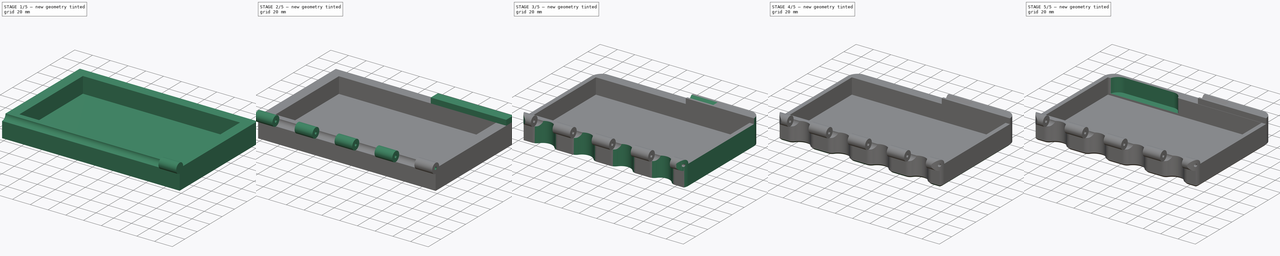
[diagram: build sequence overview — one tinted view per stage of 5, left to right]
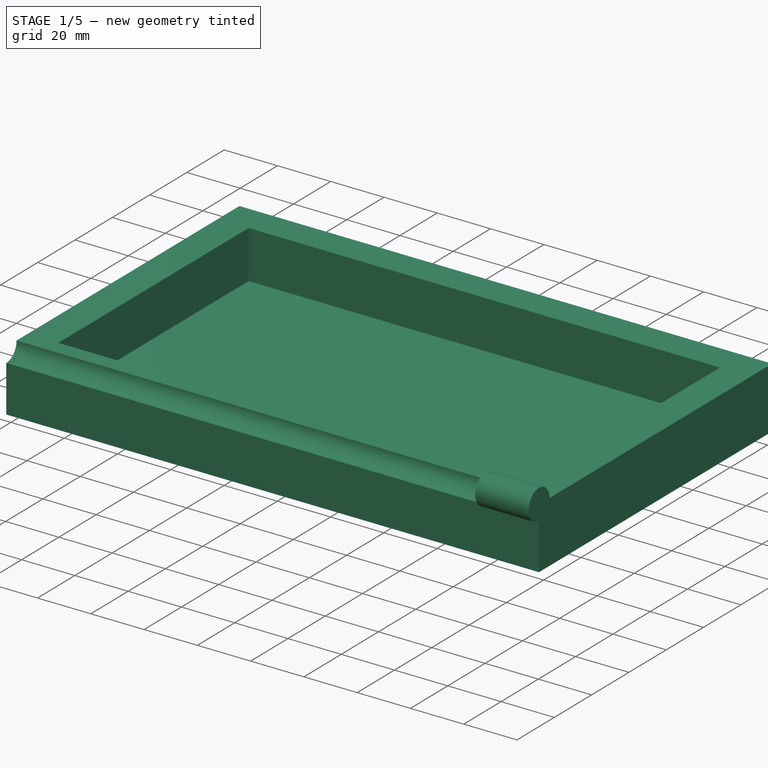
[diagram: stage 1 of 5 — iso view after this stage's code; geometry added in this stage tinted green]
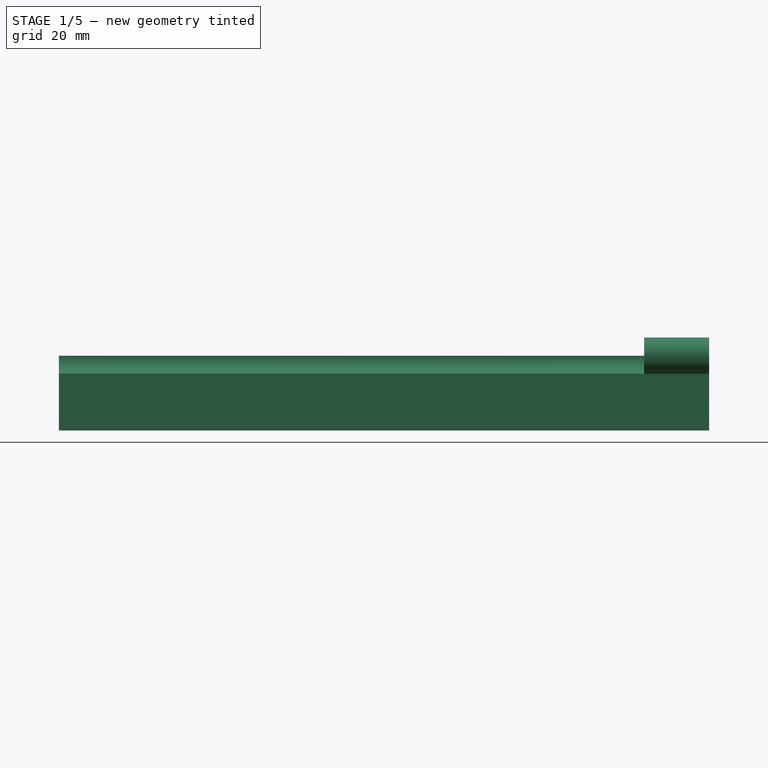
[diagram: stage 1 of 5 — front view after this stage's code; geometry added in this stage tinted green]
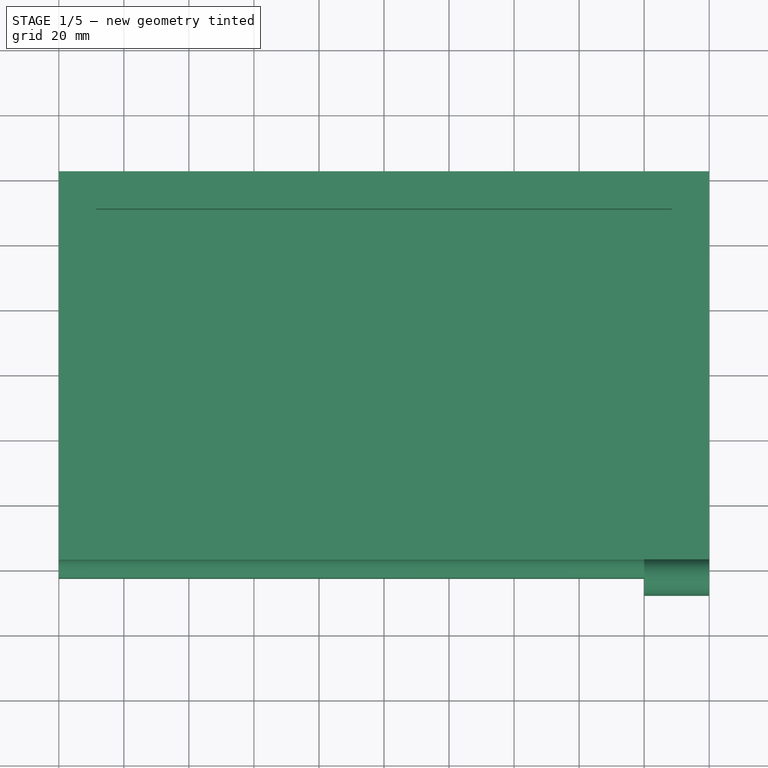
[diagram: stage 1 of 5 — top view after this stage's code; geometry added in this stage tinted green]
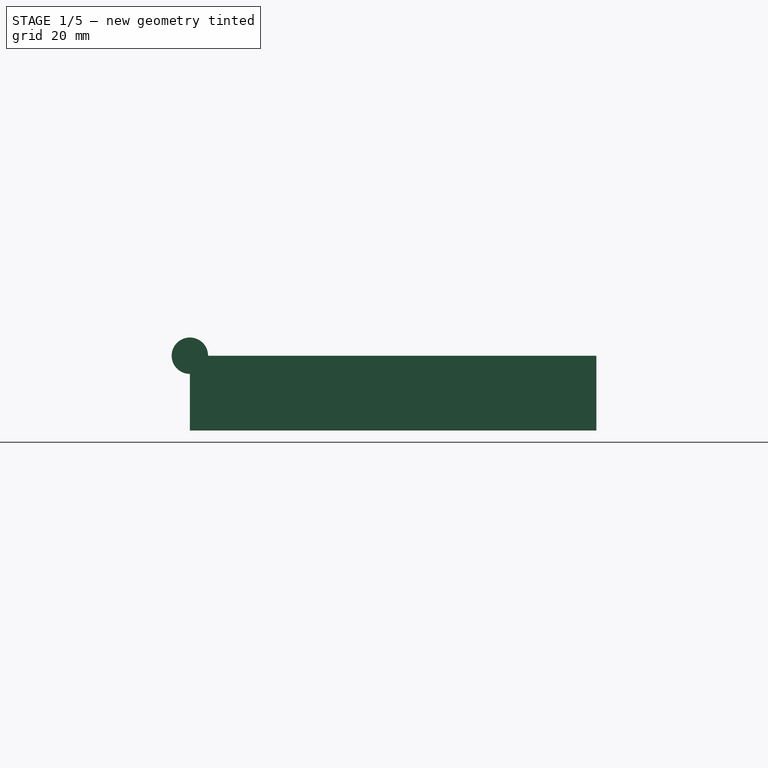
[diagram: stage 1 of 5 — right view after this stage's code; geometry added in this stage tinted green]
FCSTD DOCUMENT  (FreeCAD 0.19R)
Label: SwitchCaseSmallLatch1
License: All rights reserved
LicenseURL: http://en.wikipedia.org/wiki/All_rights_reserved
objects: Sketcher::SketchObject×12, PartDesign::Pocket×9, PartDesign::Pad×3, PartDesign::Chamfer×3, PartDesign::Fillet×2, PartDesign::LinearPattern×1, PartDesign::Body×1
note: 48 computed .brp shape members not serialized (recipe doc carries the construction recipe); baked Part::Feature solids carry a one-line shape summary decoded from their .brp

FEATURE [Sketcher::SketchObject] Sketch
  FullyConstrained = true
  MapMode = 5
  Support = -> [XY_Plane]
  sketch-geometry (4):
    g0: LineSegment StartX=-100 StartY=62.5 StartZ=0 EndX=100 EndY=62.5 EndZ=0
    g1: LineSegment StartX=100 StartY=62.5 StartZ=0 EndX=100 EndY=-62.5 EndZ=0
    g2: LineSegment StartX=100 StartY=-62.5 StartZ=0 EndX=-100 EndY=-62.5 EndZ=0
    g3: LineSegment StartX=-100 StartY=-62.5 StartZ=0 EndX=-100 EndY=62.5 EndZ=0
  constraints (11):
    c: Coincident(g0,g1)
    c: Coincident(g1,g2)
    c: Coincident(g2,g3)
    c: Coincident(g3,g0)
    c: Horizontal(g0)
    c: Horizontal(g2)
    c: Vertical(g1)
    c: Vertical(g3)
    c: Symmetric(g0,g2,g-1)
    c: Distance(g0) = 200
    c: Distance(g1) = 125
FEATURE [PartDesign::Pad] Pad
  Direction = (1,1,1)
  Length = 23
  Length2 = 100
  Profile = -> Sketch
  Type = 0
FEATURE [Sketcher::SketchObject] Sketch001
  FullyConstrained = true
  MapMode = 5
  Placement = pos=(0,0,23) rot=(0,0,1;0rad)
  Support = -> [Pad]
  sketch-geometry (4):
    g0: LineSegment StartX=-88.5 StartY=51 StartZ=0 EndX=88.5 EndY=51 EndZ=0
    g1: LineSegment StartX=88.5 StartY=51 StartZ=0 EndX=88.5 EndY=-51 EndZ=0
    g2: LineSegment StartX=88.5 StartY=-51 StartZ=0 EndX=-88.5 EndY=-51 EndZ=0
    g3: LineSegment StartX=-88.5 StartY=-51 StartZ=0 EndX=-88.5 EndY=51 EndZ=0
  constraints (11):
    c: Coincident(g0,g1)
    c: Coincident(g1,g2)
    c: Coincident(g2,g3)
    c: Coincident(g3,g0)
    c: Horizontal(g0)
    c: Horizontal(g2)
    c: Vertical(g1)
    c: Vertical(g3)
    c: Symmetric(g0,g2,g-1)
    c: Distance(g0) = 177
    c: Distance(g1) = 102
FEATURE [PartDesign::Pocket] Pocket
  BaseFeature = -> Pad
  Length = 18
  Length2 = 100
  Profile = -> Sketch001
  Type = 0
FEATURE [Sketcher::SketchObject] Sketch002
  ExternalGeometry = -> [Pocket]
  FullyConstrained = true
  MapMode = 5
  Placement = pos=(100,0,0) rot=(0.57735,0.57735,0.57735;2.0944rad)
  Support = -> [Pocket]
  sketch-geometry (1):
    g0: Circle CenterX=-62.5 CenterY=23 CenterZ=0 NormalX=0 NormalY=0 NormalZ=1 AngleXU=0 Radius=5.5
  constraints (2):
    c: Radius(g0) = 5.5
    c: Coincident(g0,g-3)
FEATURE [PartDesign::Pocket] Pocket001
  BaseFeature = -> Pocket
  Length = 5
  Length2 = 100
  Profile = -> Sketch002
  Type = 1
FEATURE [Sketcher::SketchObject] Sketch004
  ExternalGeometry = -> [Pocket001]
  FullyConstrained = true
  MapMode = 5
  Placement = pos=(100,0,0) rot=(0.57735,0.57735,0.57735;2.0944rad)
  Support = -> [Pocket001]
  sketch-geometry (1):
    g0: Circle CenterX=-62.5 CenterY=23 CenterZ=0 NormalX=0 NormalY=0 NormalZ=1 AngleXU=0 Radius=5.6
  constraints (3):
    c: Radius(g0) = 5.6
    c: PointOnObject(g0,g-3)
    c: PointOnObject(g0,g-4)
FEATURE [PartDesign::Pad] Pad001  label="PadHinge"
  BaseFeature = -> Pocket001
  Direction = (1,1,1)
  Length = 20
  Length2 = 100
  Profile = -> Sketch004
  Reversed = true
  Type = 0
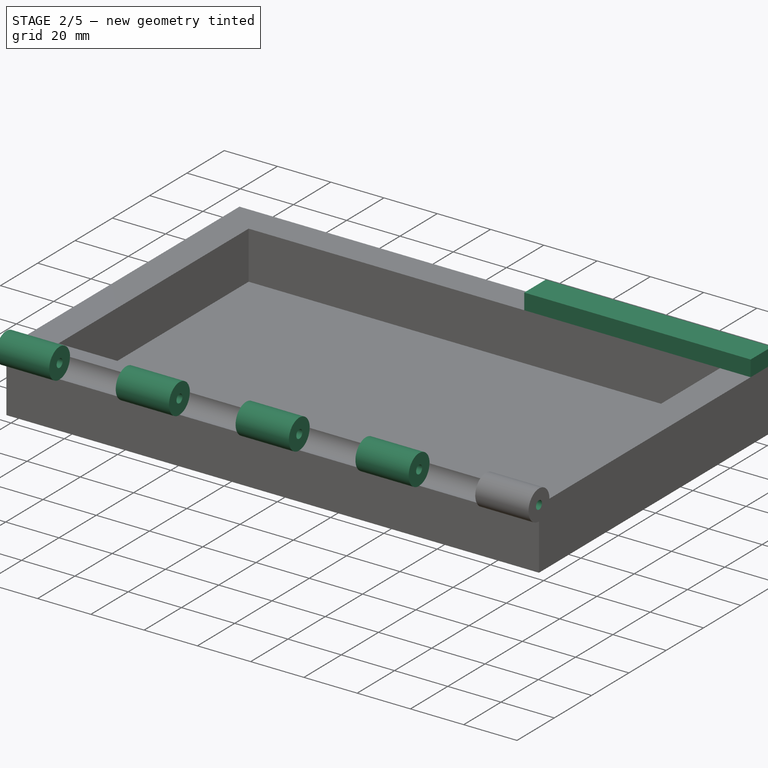
[diagram: stage 2 of 5 — iso view after this stage's code; geometry added in this stage tinted green]
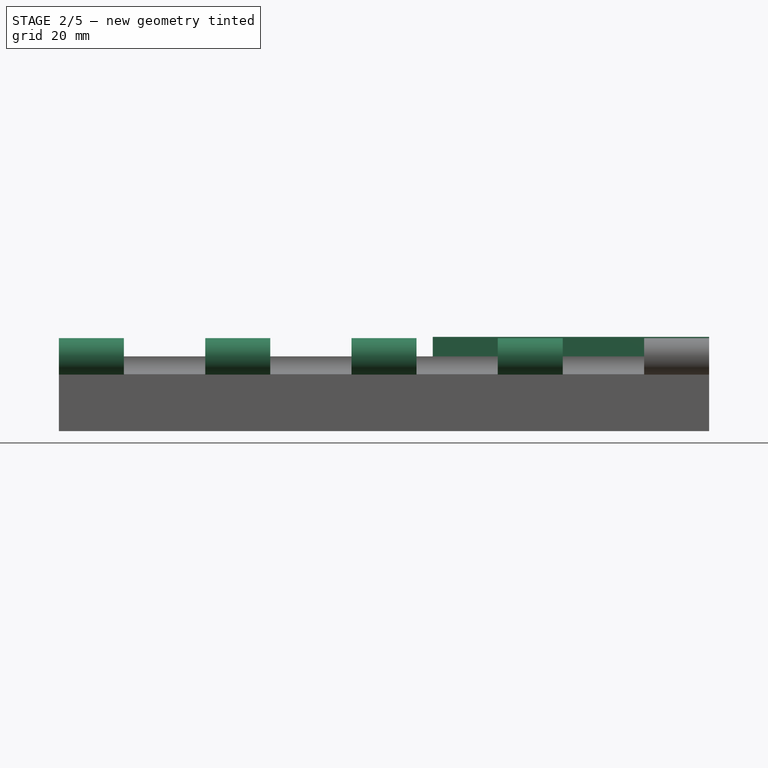
[diagram: stage 2 of 5 — front view after this stage's code; geometry added in this stage tinted green]
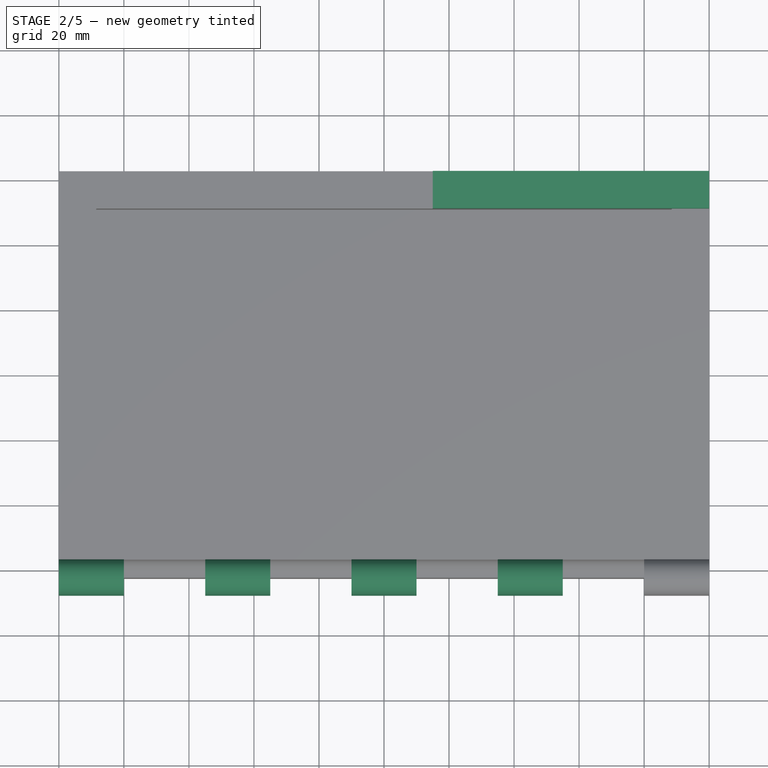
[diagram: stage 2 of 5 — top view after this stage's code; geometry added in this stage tinted green]
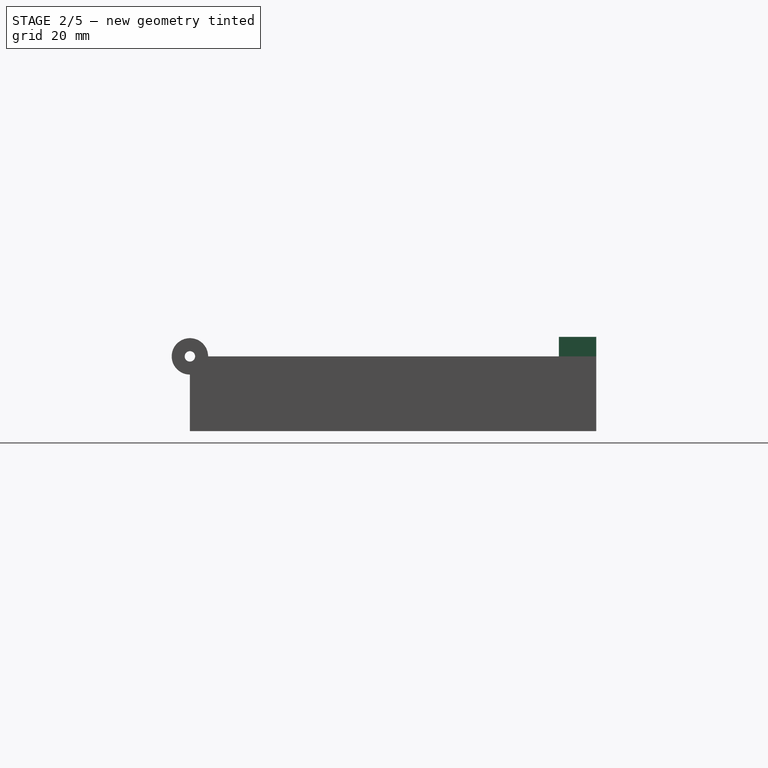
[diagram: stage 2 of 5 — right view after this stage's code; geometry added in this stage tinted green]
FEATURE [PartDesign::LinearPattern] LinearPattern
  BaseFeature = -> Pad001
  Direction = -> X_Axis
  Length = 180
  Occurrences = 5
  Originals = -> [Pad001]
  Reversed = true
FEATURE [Sketcher::SketchObject] Sketch005
  ExternalGeometry = -> [LinearPattern]
  FullyConstrained = true
  MapMode = 5
  Placement = pos=(100,0,0) rot=(0.57735,0.57735,0.57735;2.0944rad)
  Support = -> [LinearPattern]
  sketch-geometry (1):
    g0: Circle CenterX=-62.5 CenterY=23 CenterZ=0 NormalX=0 NormalY=0 NormalZ=1 AngleXU=0 Radius=1.6
  constraints (2):
    c: Radius(g0) = 1.6
    c: Coincident(g0,g-3)
FEATURE [PartDesign::Pocket] Pocket002
  BaseFeature = -> LinearPattern
  Length = 5
  Length2 = 100
  Profile = -> Sketch005
  Type = 1
FEATURE [Sketcher::SketchObject] Sketch007
  FullyConstrained = false
  MapMode = 5
  Placement = pos=(0,0,23) rot=(0,0,1;0rad)
  sketch-geometry (4):
    g0: LineSegment StartX=15 StartY=62.5 StartZ=0 EndX=100 EndY=62.5 EndZ=0
    g1: LineSegment StartX=100 StartY=62.5 StartZ=0 EndX=100 EndY=51 EndZ=0
    g2: LineSegment StartX=100 StartY=51 StartZ=0 EndX=15 EndY=51 EndZ=0
    g3: LineSegment StartX=15 StartY=51 StartZ=0 EndX=15 EndY=62.5 EndZ=0
  constraints (10):
    c: Coincident(g0,g1)
    c: Coincident(g1,g2)
    c: Coincident(g2,g3)
    c: Coincident(g3,g0)
    c: Horizontal(g0)
    c: Horizontal(g2)
    c: Vertical(g1)
    c: Vertical(g3)
    c: DistanceX(g0) = 15
    c: DistanceY(g0) = 62.5
FEATURE [PartDesign::Pad] Pad002  label="PadTower"
  BaseFeature = -> Pocket002
  Direction = (1,1,1)
  Length = 6
  Length2 = 100
  Profile = -> Sketch007
  Type = 0
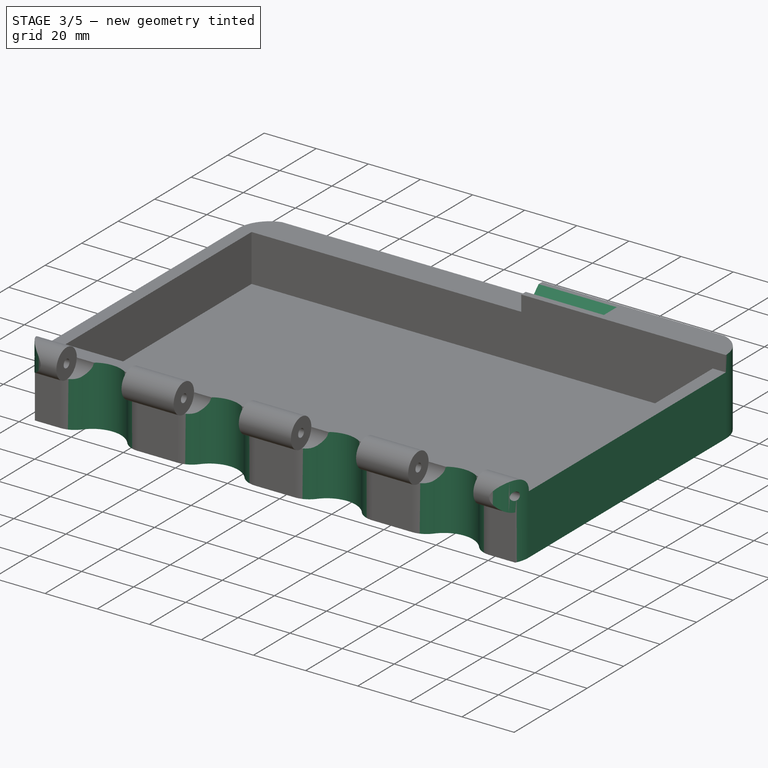
[diagram: stage 3 of 5 — iso view after this stage's code; geometry added in this stage tinted green]
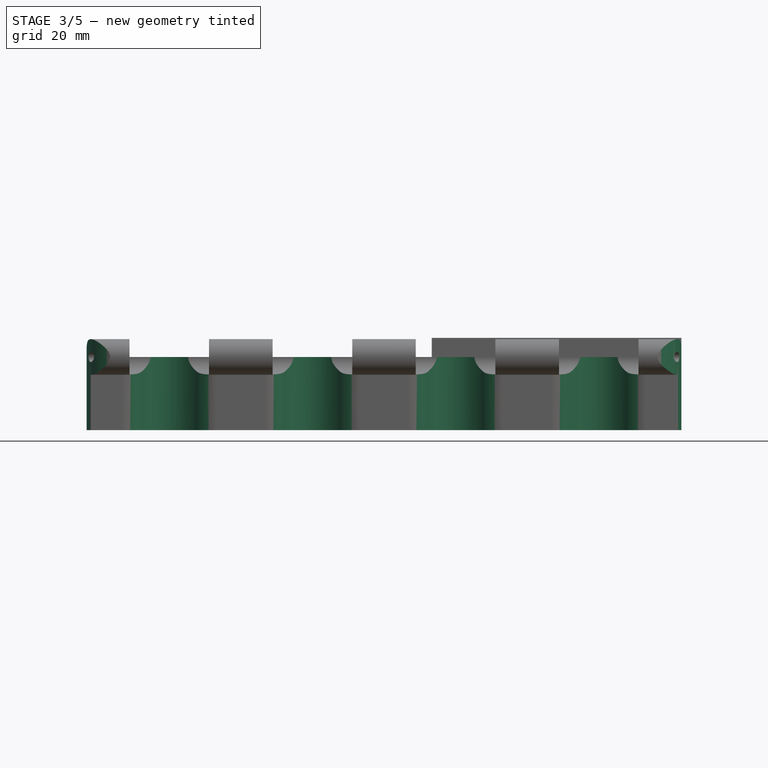
[diagram: stage 3 of 5 — front view after this stage's code; geometry added in this stage tinted green]
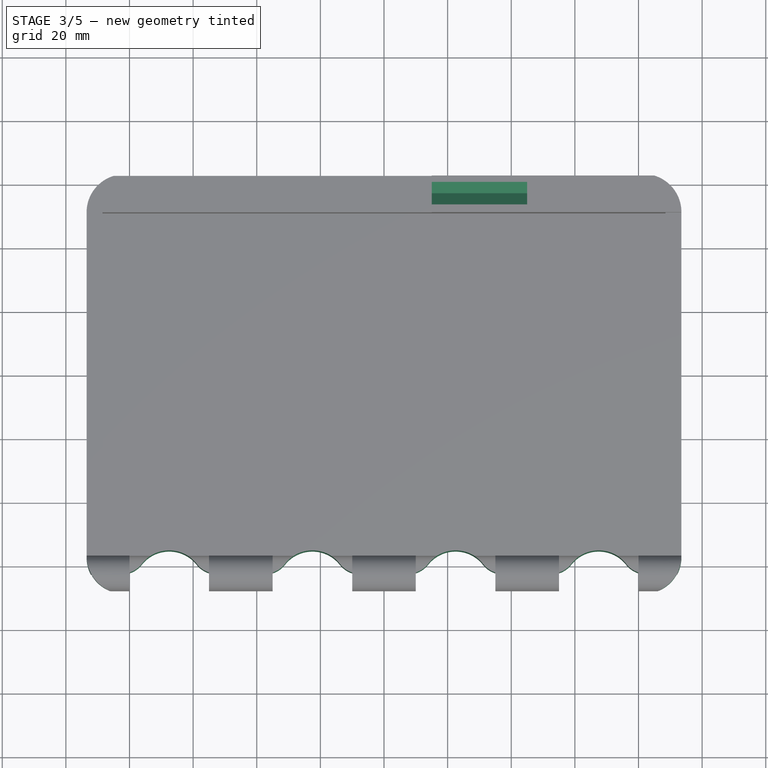
[diagram: stage 3 of 5 — top view after this stage's code; geometry added in this stage tinted green]
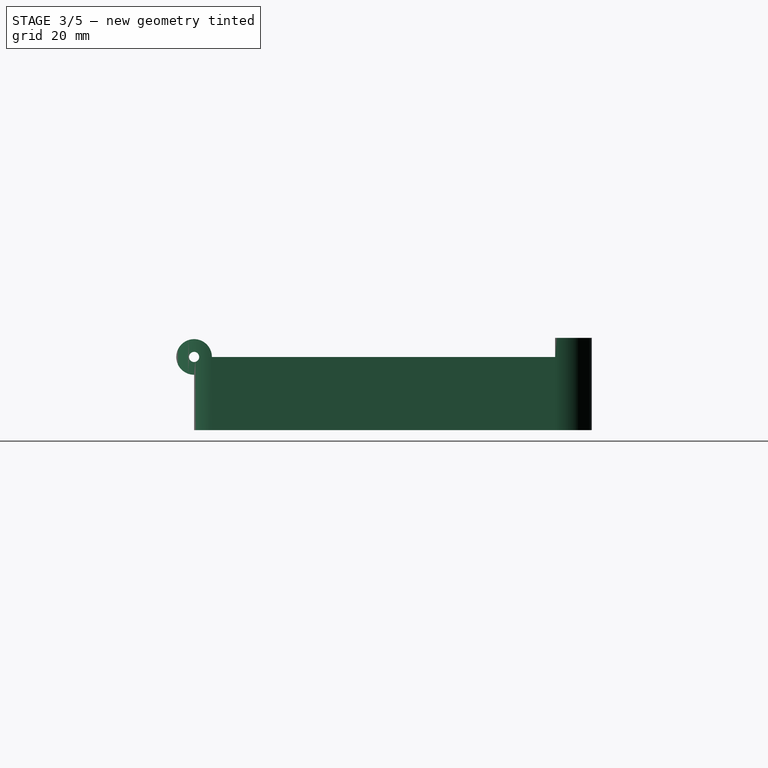
[diagram: stage 3 of 5 — right view after this stage's code; geometry added in this stage tinted green]
FEATURE [Sketcher::SketchObject] Sketch008
  ExternalGeometry = -> [Pad002]
  FullyConstrained = true
  MapMode = 5
  Placement = pos=(-100,0,0) rot=(0.57735,-0.57735,-0.57735;2.0944rad)
  Support = -> [Pad002]
  sketch-geometry (8):
    g0: LineSegment StartX=-56.9645 StartY=3.53553 StartZ=0 EndX=-60.5 EndY=0 EndZ=0
    g1: LineSegment StartX=-60.5 StartY=0 StartZ=0 EndX=-56.9645 EndY=-3.53553 EndZ=0
    g2: LineSegment StartX=-56.9645 StartY=-3.53553 StartZ=0 EndX=-53.4289 EndY=0 EndZ=0
    g3: LineSegment StartX=-53.4289 StartY=0 StartZ=0 EndX=-56.9645 EndY=3.53553 EndZ=0
    g4: LineSegment StartX=-56.9645 StartY=32.5355 StartZ=0 EndX=-60.5 EndY=29 EndZ=0
    g5: LineSegment StartX=-60.5 StartY=29 StartZ=0 EndX=-56.9645 EndY=25.4645 EndZ=0
    g6: LineSegment StartX=-56.9645 StartY=25.4645 StartZ=0 EndX=-53.4289 EndY=29 EndZ=0
    g7: LineSegment StartX=-53.4289 StartY=29 StartZ=0 EndX=-56.9645 EndY=32.5355 EndZ=0
  constraints (24):
    c: Coincident(g0,g1)
    c: Coincident(g1,g2)
    c: Coincident(g2,g3)
    c: Coincident(g3,g0)
    c: Perpendicular(g0,g3)
    c: Perpendicular(g1,g0)
    c: Equal(g2,g1)
    c: Equal(g0,g3)
    c: Distance(g3) = 5
    c: PointOnObject(g2,g-1)
    c: PointOnObject(g0,g-1)
    c: Distance(g0,g-3) = 2
    c: Coincident(g4,g5)
    c: Coincident(g5,g6)
    c: Coincident(g6,g7)
    c: Coincident(g7,g4)
    c: Perpendicular(g4,g7)
    c: Perpendicular(g4,g5)
    c: Equal(g5,g6)
    c: Equal(g6,g7)
    c: Distance(g7) = 5
    c: PointOnObject(g4,g-4)
    c: PointOnObject(g6,g-4)
    c: Distance(g4,g-4) = 2
FEATURE [PartDesign::Pocket] Pocket003
  BaseFeature = -> Pad002
  Length = 145
  Length2 = 100
  Profile = -> Sketch008
  Type = 0
FEATURE [Sketcher::SketchObject] Sketch009
  FullyConstrained = true
  MapMode = 5
  Placement = pos=(0,0,0) rot=(1,0,0;3.14159rad)
  Support = -> [Pocket003]
  sketch-geometry (9):
    g0: ArcOfCircle CenterX=81.5 CenterY=57 CenterZ=0 NormalX=0 NormalY=0 NormalZ=1 AngleXU=0 Radius=12 StartAngle=0 EndAngle=1.5708
    g1: ArcOfCircle CenterX=81.5 CenterY=-51 CenterZ=0 NormalX=0 NormalY=0 NormalZ=1 AngleXU=0 Radius=12 StartAngle=4.71239 EndAngle=6.28319
    g2: ArcOfCircle CenterX=-81.5 CenterY=-51 CenterZ=0 NormalX=0 NormalY=0 NormalZ=1 AngleXU=0 Radius=12 StartAngle=3.14159 EndAngle=4.71239
    g3: ArcOfCircle CenterX=-81.5 CenterY=57 CenterZ=0 NormalX=0 NormalY=0 NormalZ=1 AngleXU=0 Radius=12 StartAngle=1.5708 EndAngle=3.14159
    g4: LineSegment StartX=-93.5 StartY=57 StartZ=0 EndX=-93.5 EndY=-51 EndZ=0
    g5: LineSegment StartX=-81.5 StartY=-63 StartZ=0 EndX=81.5 EndY=-63 EndZ=0
    g6: LineSegment StartX=93.5 StartY=-51 StartZ=0 EndX=93.5 EndY=57 EndZ=0
    g7: LineSegment StartX=81.5 StartY=69 StartZ=0 EndX=-81.5 EndY=69 EndZ=0
    g8: Circle CenterX=0 CenterY=0 CenterZ=0 NormalX=0 NormalY=0 NormalZ=1 AngleXU=0 Radius=141.94
  constraints (20):
    c: Radius(g3) = 12
    c: Equal(g3,g2)
    c: Equal(g3,g0)
    c: Tangent(g7,g3) = -1.5708
    c: Tangent(g7,g0) = -1.5708
    c: Tangent(g6,g0) = -1.5708
    c: Tangent(g6,g1) = -1.5708
    c: Tangent(g5,g2) = -1.5708
    c: Tangent(g4,g2) = -1.5708
    c: Tangent(g1,g5) = -1.5708
    c: Vertical(g4)
    c: Vertical(g6)
    c: Tangent(g4,g3) = -1.5708
    c: Symmetric(g1,g2,g-2)
    c: Symmetric(g0,g3,g-2)
    c: DistanceY(g0) = 69
    c: DistanceY(g1) = -63
    c: Distance(g2,g1) = 187
    c: Coincident(g8,g-1)
    c: Radius(g8) = 141.94
FEATURE [PartDesign::Pocket] Pocket004
  BaseFeature = -> Pocket003
  Length = 5
  Length2 = 100
  Profile = -> Sketch009
  Type = 1
FEATURE [Sketcher::SketchObject] Sketch010
  FullyConstrained = true
  MapMode = 5
  Placement = pos=(0,0,23) rot=(0,0,1;0rad)
  Support = -> [Pocket004]
  sketch-geometry (5):
    g0: Circle CenterX=-67.5 CenterY=-66.25 CenterZ=0 NormalX=0 NormalY=0 NormalZ=1 AngleXU=0 Radius=11
    g1: Circle CenterX=-22.5 CenterY=-66.25 CenterZ=0 NormalX=0 NormalY=0 NormalZ=1 AngleXU=0 Radius=11
    g2: Circle CenterX=22.5 CenterY=-66.25 CenterZ=0 NormalX=0 NormalY=0 NormalZ=1 AngleXU=0 Radius=11
    g3: Circle CenterX=67.5 CenterY=-66.25 CenterZ=0 NormalX=0 NormalY=0 NormalZ=1 AngleXU=0 Radius=11
    g4: LineSegment StartX=-100 StartY=-66.25 StartZ=0 EndX=100 EndY=-66.25 EndZ=0
  constraints (13):
    c: Radius(g3) = 11
    c: Equal(g3,g2)
    c: Equal(g3,g1)
    c: Equal(g3,g0)
    c: PointOnObject(g0,g4)
    c: PointOnObject(g1,g4)
    c: DistanceY(g4) = -66.25
    c: Symmetric(g2,g1,g-2)
    c: Symmetric(g3,g0,g-2)
    c: Distance(g2,g1) = 45
    c: Distance(g3,g0) = 135
    c: Distance(g4) = 200
    c: Symmetric(g4,g4,g-2)
FEATURE [PartDesign::Pocket] Pocket005
  BaseFeature = -> Pocket004
  Length = 5
  Length2 = 100
  Profile = -> Sketch010
  Type = 1
FEATURE [PartDesign::Fillet] Fillet
  Base = -> Pocket005 [Edge79,Edge81,Edge88,Edge90,Edge97,Edge99,Edge106,Edge108]
  BaseFeature = -> Pocket005
  Radius = 8
  SupportTransform = false
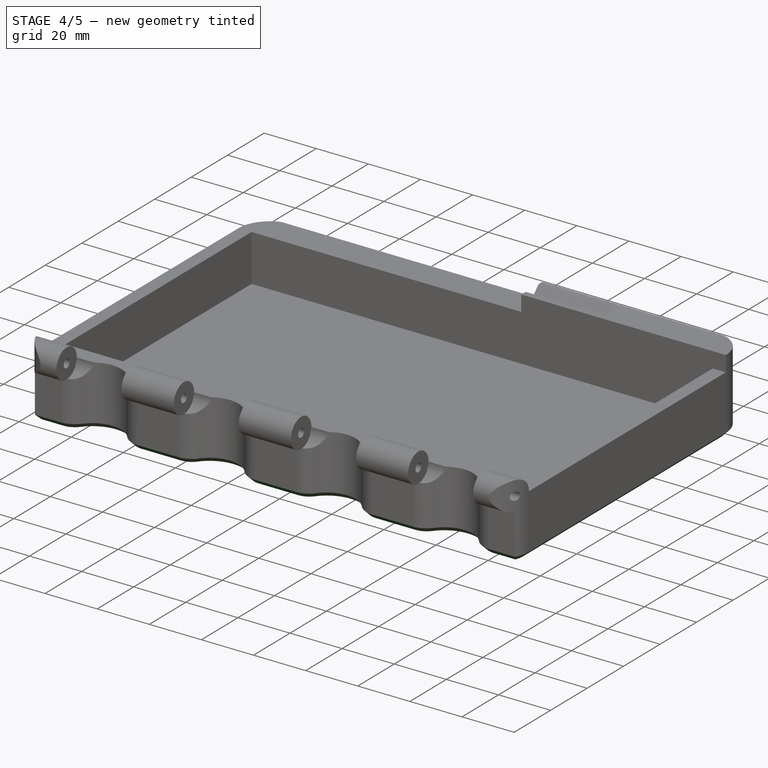
[diagram: stage 4 of 5 — iso view after this stage's code; geometry added in this stage tinted green]
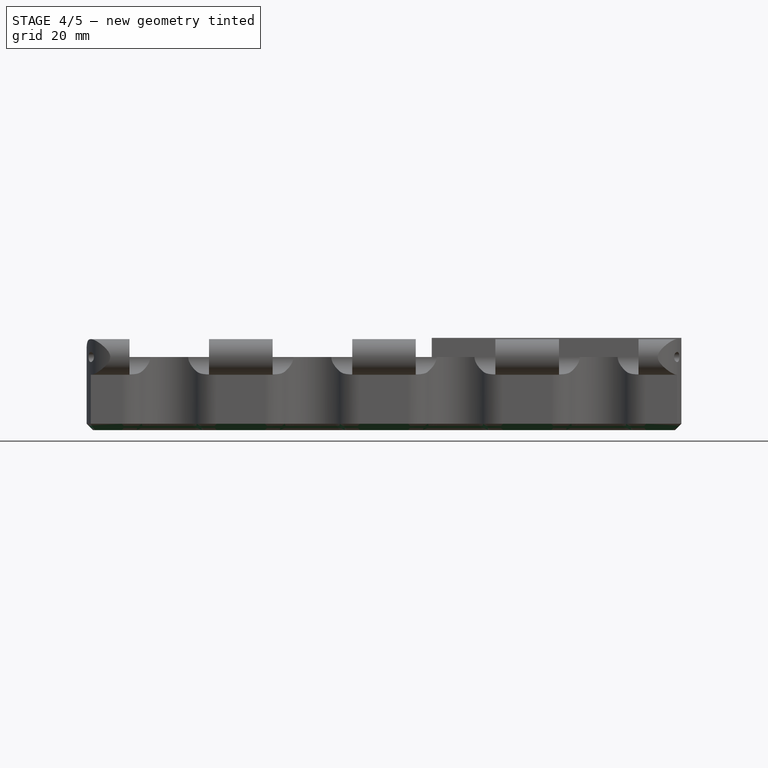
[diagram: stage 4 of 5 — front view after this stage's code; geometry added in this stage tinted green]
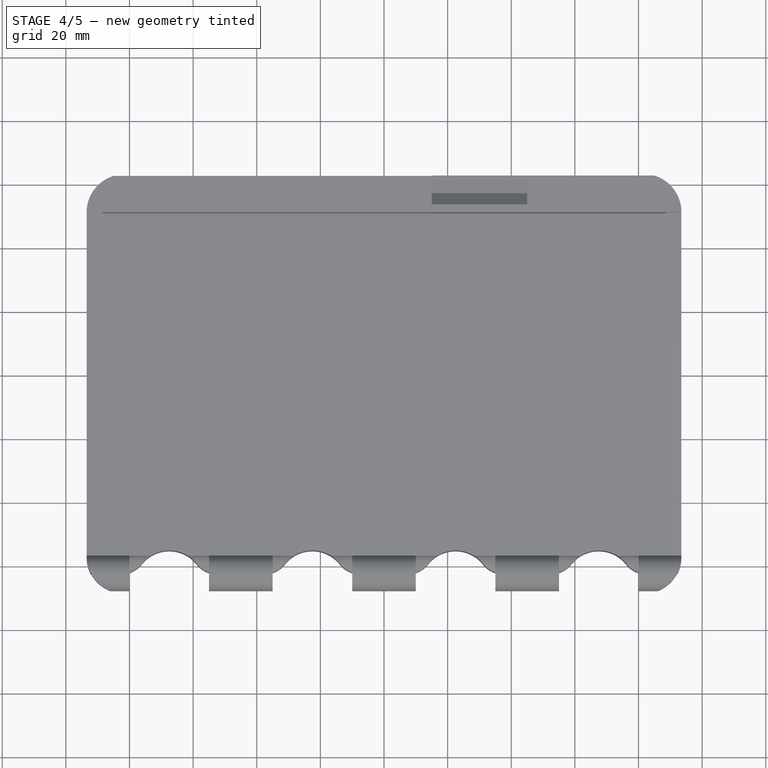
[diagram: stage 4 of 5 — top view after this stage's code; geometry added in this stage tinted green]
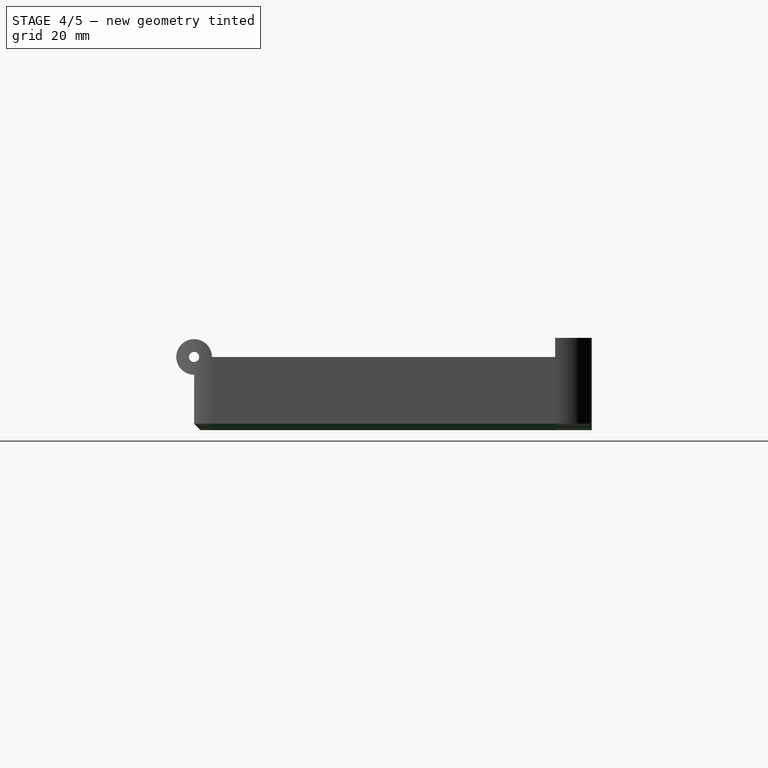
[diagram: stage 4 of 5 — right view after this stage's code; geometry added in this stage tinted green]
FEATURE [PartDesign::Chamfer] Chamfer
  Angle = 45
  Base = -> Fillet [Edge5]
  BaseFeature = -> Fillet
  ChamferType = 0
  FlipDirection = false
  Size = 2
  Size2 = 1
  SupportTransform = false
FEATURE [PartDesign::Chamfer] Chamfer001
  Angle = 45
  Base = -> Chamfer [Edge20]
  BaseFeature = -> Chamfer
  ChamferType = 0
  FlipDirection = false
  Size = 2
  Size2 = 1
  SupportTransform = false
FEATURE [PartDesign::Chamfer] Chamfer002
  Angle = 45
  Base = -> Chamfer001 [Edge14]
  BaseFeature = -> Chamfer001
  ChamferType = 0
  FlipDirection = false
  Size = 2
  Size2 = 1
  SupportTransform = false
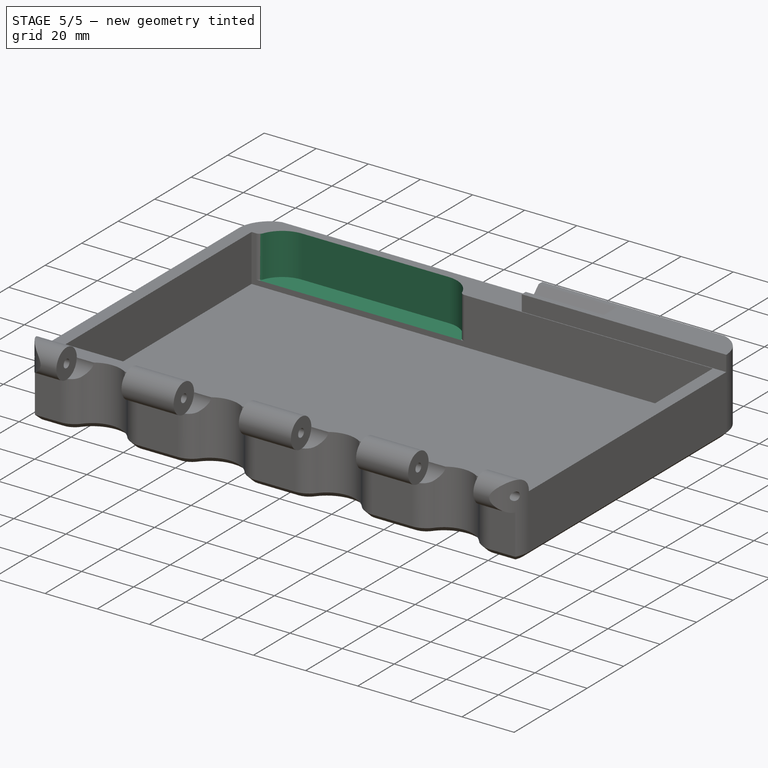
[diagram: stage 5 of 5 — iso view after this stage's code; geometry added in this stage tinted green]
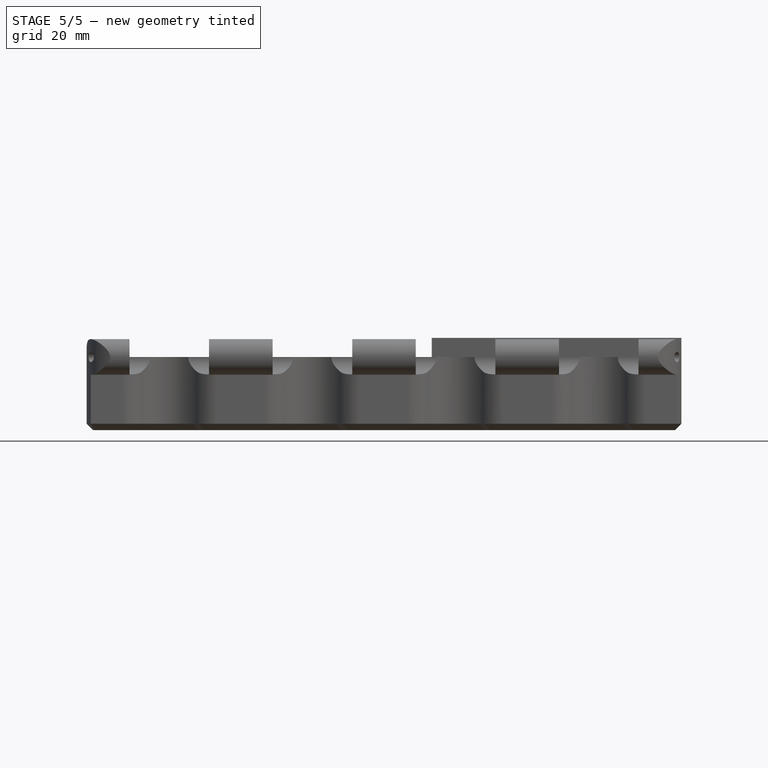
[diagram: stage 5 of 5 — front view after this stage's code; geometry added in this stage tinted green]
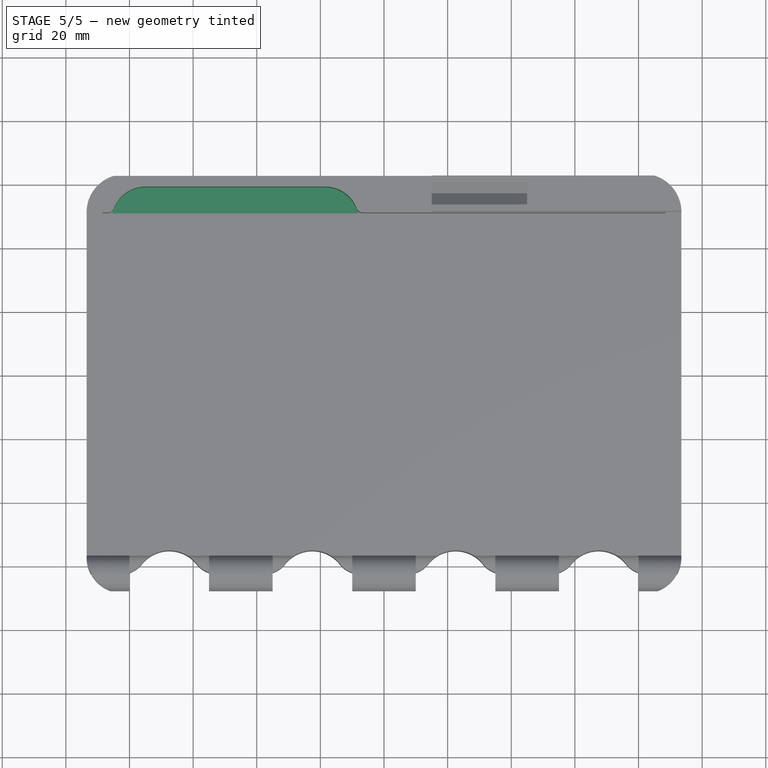
[diagram: stage 5 of 5 — top view after this stage's code; geometry added in this stage tinted green]
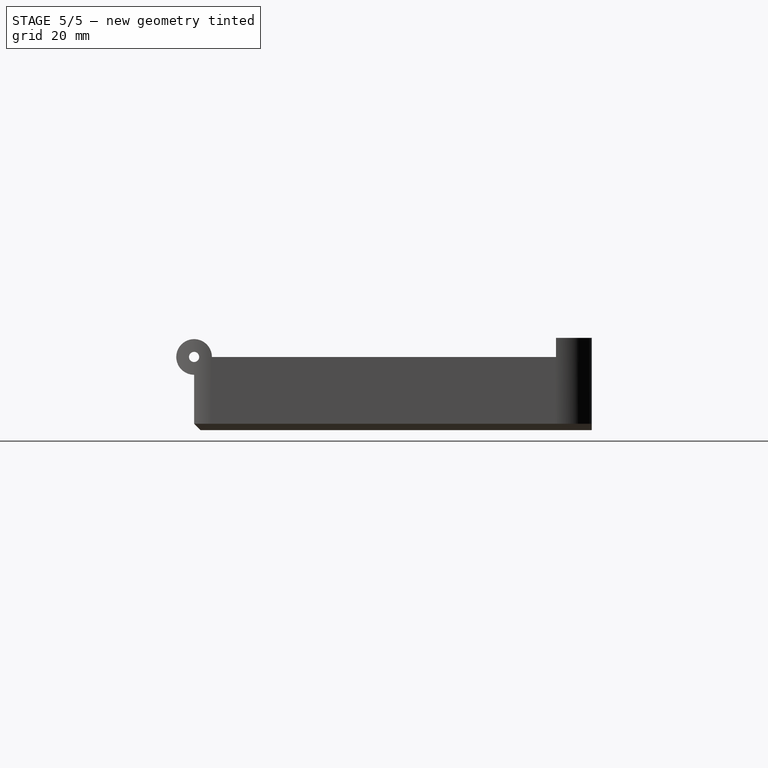
[diagram: stage 5 of 5 — right view after this stage's code; geometry added in this stage tinted green]
FEATURE [Sketcher::SketchObject] Sketch011
  FullyConstrained = false
  MapMode = 5
  Placement = pos=(0,0,23) rot=(0,0,1;0rad)
  Support = -> [Chamfer002]
  sketch-geometry (4):
    g0: ArcOfCircle CenterX=-74.9627 CenterY=48.4724 CenterZ=0 NormalX=0 NormalY=0 NormalZ=1 AngleXU=0 Radius=10.6758 StartAngle=1.5708 EndAngle=4.71239
    g1: ArcOfCircle CenterX=-18.5759 CenterY=48.4724 CenterZ=0 NormalX=0 NormalY=0 NormalZ=1 AngleXU=0 Radius=10.6758 StartAngle=4.71239 EndAngle=7.85398
    g2: LineSegment StartX=-74.9627 StartY=37.7966 StartZ=0 EndX=-18.5759 EndY=37.7966 EndZ=0
    g3: LineSegment StartX=-74.9627 StartY=59.1482 StartZ=0 EndX=-18.5759 EndY=59.1482 EndZ=0
  constraints (6):
    c: Tangent(g0,g3) = 1.5708
    c: Tangent(g0,g2) = -1.5708
    c: Tangent(g2,g1) = -1.5708
    c: Tangent(g3,g1) = 1.5708
    c: Horizontal(g2)
    c: Equal(g0,g1)
FEATURE [PartDesign::Pocket] Pocket006
  BaseFeature = -> Chamfer002
  Length = 16
  Length2 = 100
  Profile = -> Sketch011
  Type = 0
FEATURE [Sketcher::SketchObject] Sketch012
  FullyConstrained = true
  MapMode = 5
  Placement = pos=(0,62.5,0) rot=(0,0.707107,0.707107;3.14159rad)
  Support = -> [Pocket006]
  sketch-geometry (8):
    g0: LineSegment StartX=35 StartY=16.5 StartZ=0 EndX=45 EndY=16.5 EndZ=0
    g1: LineSegment StartX=45 StartY=16.5 StartZ=0 EndX=45 EndY=6.5 EndZ=0
    g2: LineSegment StartX=45 StartY=6.5 StartZ=0 EndX=35 EndY=6.5 EndZ=0
    g3: LineSegment StartX=35 StartY=6.5 StartZ=0 EndX=35 EndY=16.5 EndZ=0
    g4: LineSegment StartX=0 StartY=16.5 StartZ=0 EndX=10 EndY=16.5 EndZ=0
    g5: LineSegment StartX=10 StartY=16.5 StartZ=0 EndX=10 EndY=6.5 EndZ=0
    g6: LineSegment StartX=10 StartY=6.5 StartZ=0 EndX=0 EndY=6.5 EndZ=0
    g7: LineSegment StartX=0 StartY=6.5 StartZ=0 EndX=0 EndY=16.5 EndZ=0
  constraints (24):
    c: Coincident(g0,g1)
    c: Coincident(g1,g2)
    c: Coincident(g2,g3)
    c: Coincident(g3,g0)
    c: Horizontal(g0)
    c: Horizontal(g2)
    c: Vertical(g1)
    c: Vertical(g3)
    c: Equal(g1,g0)
    c: Distance(g1) = 10
    c: DistanceY(g2) = 6.5
    c: DistanceX(g2) = 35
    c: Coincident(g4,g5)
    c: Coincident(g5,g6)
    c: Coincident(g6,g7)
    c: Coincident(g7,g4)
    c: Horizontal(g4)
    c: Horizontal(g6)
    c: Vertical(g5)
    c: Vertical(g7)
    c: Equal(g5,g6)
    c: Distance(g5) = 10
    c: DistanceY(g6) = 6.5
    c: PointOnObject(g4,g-2)
FEATURE [PartDesign::Pocket] Pocket007
  BaseFeature = -> Pocket006
  Length = 2
  Length2 = 100
  Profile = -> Sketch012
  Type = 0
FEATURE [PartDesign::Fillet] Fillet001
  Base = -> Pocket007 [Edge261,Edge259]
  BaseFeature = -> Pocket007
  Radius = 2
  SupportTransform = false
FEATURE [Sketcher::SketchObject] Sketch013
  FullyConstrained = true
  MapMode = 5
  Placement = pos=(0,0,29) rot=(0,0,1;0rad)
  Support = -> [Fillet001]
  sketch-geometry (4):
    g0: LineSegment StartX=0 StartY=51.25 StartZ=0 EndX=100 EndY=51.25 EndZ=0
    g1: LineSegment StartX=100 StartY=51.25 StartZ=0 EndX=100 EndY=46.18 EndZ=0
    g2: LineSegment StartX=100 StartY=46.18 StartZ=0 EndX=0 EndY=46.18 EndZ=0
    g3: LineSegment StartX=0 StartY=46.18 StartZ=0 EndX=0 EndY=51.25 EndZ=0
  constraints (12):
    c: Coincident(g0,g1)
    c: Coincident(g1,g2)
    c: Coincident(g2,g3)
    c: Coincident(g3,g0)
    c: Horizontal(g0)
    c: Horizontal(g2)
    c: Vertical(g1)
    c: Vertical(g3)
    c: DistanceY(g0) = 51.25
    c: PointOnObject(g0,g-2)
    c: Distance(g0) = 100
    c: Distance(g1) = 5.07
FEATURE [PartDesign::Pocket] Pocket008
  BaseFeature = -> Fillet001
  Length = 6
  Length2 = 100
  Profile = -> Sketch013
  Type = 0
FEATURE [PartDesign::Body] Body
  Group = -> [Sketch,Pad,Sketch001,Pocket,Sketch002,Pocket001,Sketch004,Pad001,LinearPattern,Sketch005,Pocket002,Sketch007,Pad002,Sketch008,Pocket003,Sketch009,Pocket004,Sketch010,Pocket005,Fillet,Chamfer,Chamfer001,Chamfer002,Sketch011,Pocket006,Sketch012,Pocket007,Fillet001,Sketch013,Pocket008]
  Origin = -> Origin
  Tip = -> Pocket008
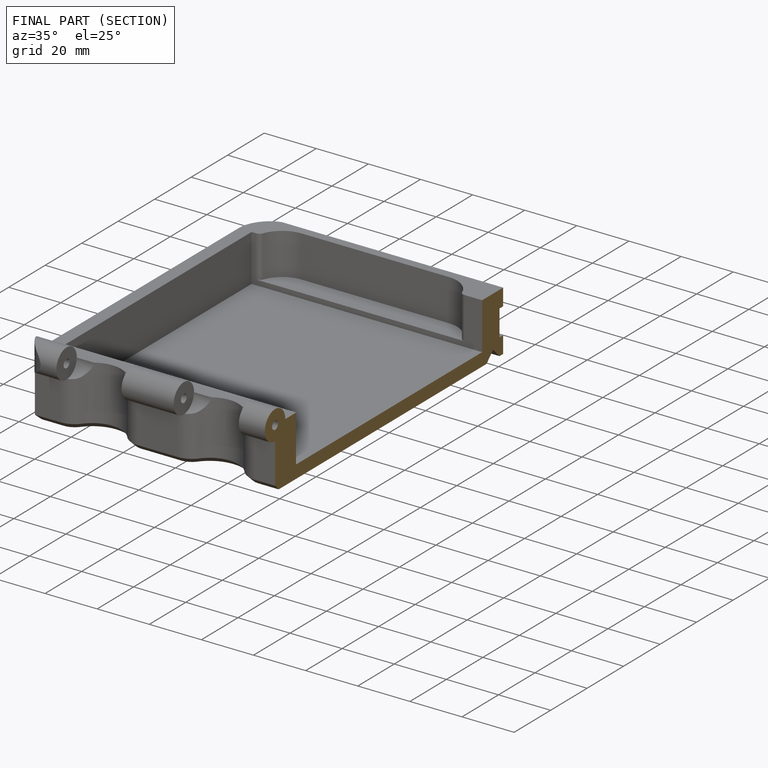
[diagram: finished part — half-section view (interior)]
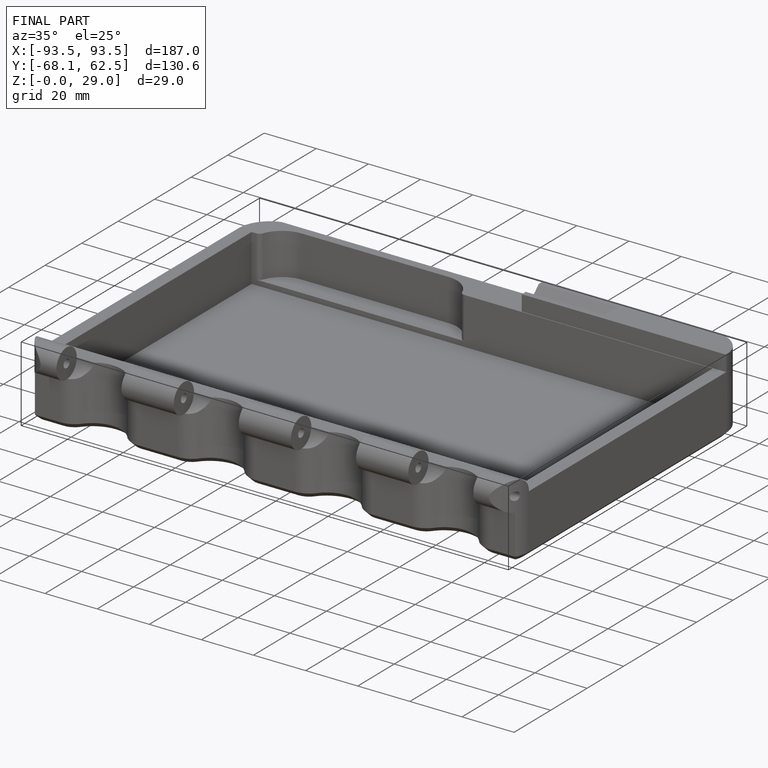
[diagram: finished part — iso view with bounding-box wireframe]
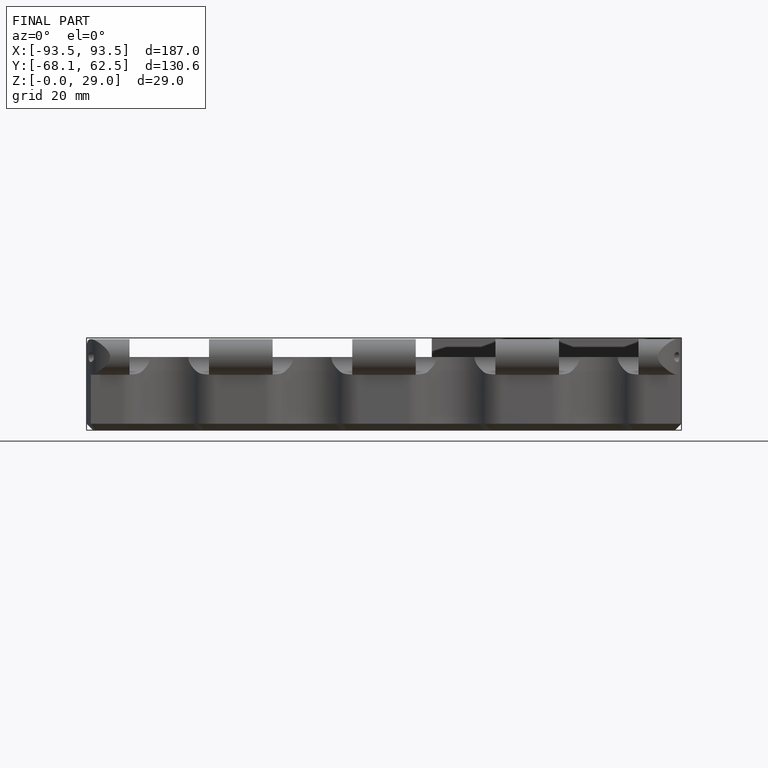
[diagram: finished part — front view with bounding-box wireframe]
